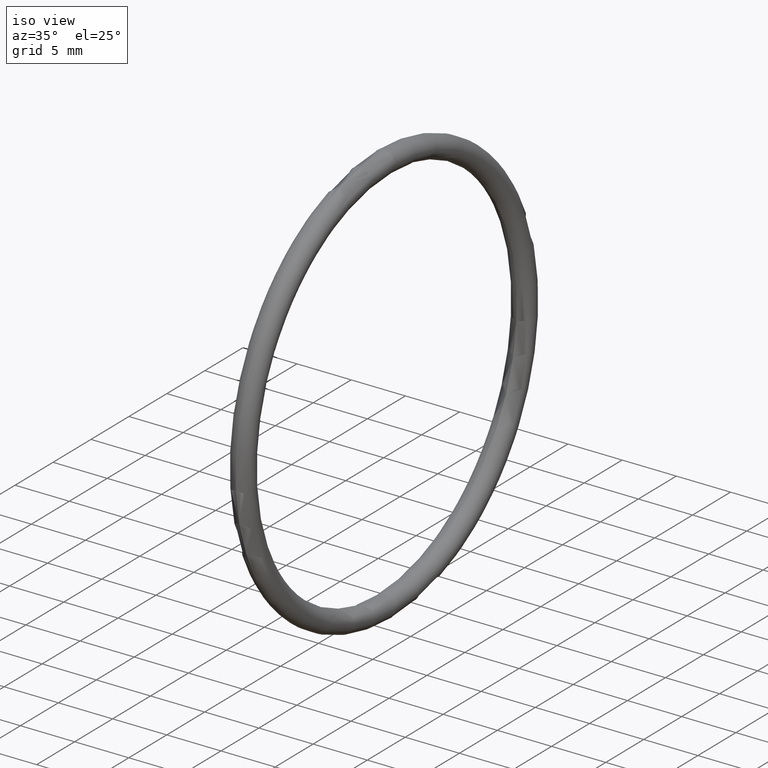
[diagram: clean part render]
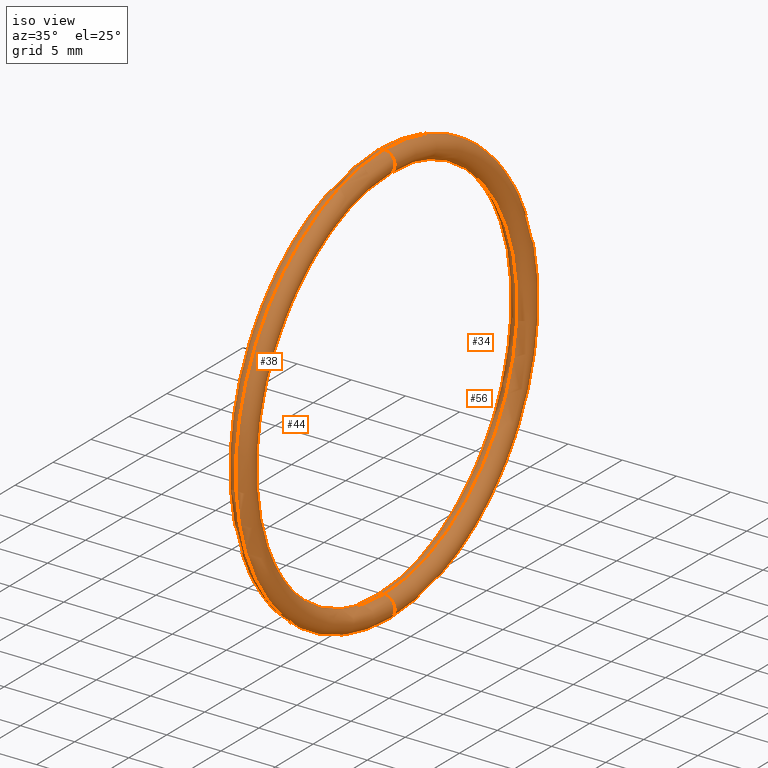
[diagram: same view with one multi-face feature highlighted, each face labeled with its STEP entity id]
A machine part, iso view. The highlighted faces form ONE feature: a constant-radius fillet chain: 4 tangent blend faces with common blend radius 1.016 mm. The faces share edges in the B-rep.
Their STEP definitions:
[1] entity #38 (Torus):
#13 = FACE_OUTER_BOUND ( 'NONE', #54, .T. ) ;
#38 = ADVANCED_FACE ( 'NONE', ( #13 ), #69, .T. ) ;
#47 = ORIENTED_EDGE ( 'NONE', *, *, #60, .T. ) ;
#48 = VERTEX_POINT ( 'NONE', #116 ) ;
#49 = EDGE_CURVE ( 'NONE', #52, #48, #92, .T. ) ;
#50 = EDGE_CURVE ( 'NONE', #52, #51, #114, .T. ) ;
#51 = VERTEX_POINT ( 'NONE', #111 ) ;
#52 = VERTEX_POINT ( 'NONE', #110 ) ;
#53 = ORIENTED_EDGE ( 'NONE', *, *, #50, .F. ) ;
#54 = EDGE_LOOP ( 'NONE', ( #53, #55, #47, #61 ) ) ;
#55 = ORIENTED_EDGE ( 'NONE', *, *, #49, .T. ) ;
#58 = VERTEX_POINT ( 'NONE', #99 ) ;
#59 = EDGE_CURVE ( 'NONE', #51, #58, #102, .T. ) ;
#60 = EDGE_CURVE ( 'NONE', #48, #58, #82, .T. ) ;
#61 = ORIENTED_EDGE ( 'NONE', *, *, #59, .F. ) ;
#68 = CARTESIAN_POINT ( 'NONE',  ( 0.1000000000000000900, 0.0000000000000000000, 0.0000000000000000000 ) ) ;
#69 = TOROIDAL_SURFACE ( 'NONE', #70, 0.7299999999999998700, 0.03999999999999997300 ) ;
#70 = AXIS2_PLACEMENT_3D ( 'NONE', #68, #106, #78 ) ;
#78 = DIRECTION ( 'NONE',  ( 0.0000000000000000000, 0.0000000000000000000, 1.000000000000000000 ) ) ;
#79 = DIRECTION ( 'NONE',  ( 0.0000000000000000000, -1.000000000000000000, 0.0000000000000000000 ) ) ;
#80 = CARTESIAN_POINT ( 'NONE',  ( 0.1000000000000000900, 0.0000000000000000000, 0.7299999999999998700 ) ) ;
#81 = AXIS2_PLACEMENT_3D ( 'NONE', #80, #79, #120 ) ;
#82 = CIRCLE ( 'NONE', #81, 0.03999999999999998000 ) ;
#83 = DIRECTION ( 'NONE',  ( 0.0000000000000000000, 0.0000000000000000000, 1.000000000000000000 ) ) ;
#84 = DIRECTION ( 'NONE',  ( -1.000000000000000000, -0.0000000000000000000, -0.0000000000000000000 ) ) ;
#85 = AXIS2_PLACEMENT_3D ( 'NONE', #101, #84, #83 ) ;
#86 = CARTESIAN_POINT ( 'NONE',  ( 0.1000000000000000900, 8.939921633775677100E-017, -0.7299999999999998700 ) ) ;
#88 = DIRECTION ( 'NONE',  ( 0.0000000000000000000, 0.0000000000000000000, 1.000000000000000000 ) ) ;
#89 = DIRECTION ( 'NONE',  ( -1.000000000000000000, -0.0000000000000000000, -0.0000000000000000000 ) ) ;
#90 = CARTESIAN_POINT ( 'NONE',  ( 0.1000000000000000900, 0.0000000000000000000, 0.0000000000000000000 ) ) ;
#91 = AXIS2_PLACEMENT_3D ( 'NONE', #90, #89, #88 ) ;
#92 = CIRCLE ( 'NONE', #91, 0.7699999999999998000 ) ;
#96 = DIRECTION ( 'NONE',  ( -0.0000000000000000000, 1.000000000000000000, 1.224646799147353200E-016 ) ) ;
#99 = CARTESIAN_POINT ( 'NONE',  ( 0.1000000000000000900, 0.0000000000000000000, 0.6899999999999998400 ) ) ;
#101 = CARTESIAN_POINT ( 'NONE',  ( 0.1000000000000000900, 0.0000000000000000000, 0.0000000000000000000 ) ) ;
#102 = CIRCLE ( 'NONE', #85, 0.6899999999999998400 ) ;
#106 = DIRECTION ( 'NONE',  ( -1.000000000000000000, -0.0000000000000000000, -0.0000000000000000000 ) ) ;
#110 = CARTESIAN_POINT ( 'NONE',  ( 0.1000000000000000900, 9.429780353434617300E-017, -0.7699999999999996800 ) ) ;
#111 = CARTESIAN_POINT ( 'NONE',  ( 0.1000000000000000900, 8.450062914116736900E-017, -0.6899999999999998400 ) ) ;
#112 = DIRECTION ( 'NONE',  ( 0.0000000000000000000, -1.224646799147351000E-016, 1.000000000000000000 ) ) ;
#113 = AXIS2_PLACEMENT_3D ( 'NONE', #86, #96, #112 ) ;
#114 = CIRCLE ( 'NONE', #113, 0.03999999999999998000 ) ;
#116 = CARTESIAN_POINT ( 'NONE',  ( 0.1000000000000000900, 0.0000000000000000000, 0.7699999999999996800 ) ) ;
#120 = DIRECTION ( 'NONE',  ( 0.0000000000000000000, 0.0000000000000000000, -1.000000000000000000 ) ) ;
[2] entity #44 (Torus):
#8 = DIRECTION ( 'NONE',  ( 0.0000000000000000000, 0.0000000000000000000, -1.000000000000000000 ) ) ;
#9 = DIRECTION ( 'NONE',  ( 0.0000000000000000000, -1.000000000000000000, 0.0000000000000000000 ) ) ;
#10 = CARTESIAN_POINT ( 'NONE',  ( 0.1000000000000000900, 0.0000000000000000000, 0.7299999999999998700 ) ) ;
#11 = AXIS2_PLACEMENT_3D ( 'NONE', #10, #9, #8 ) ;
#12 = CIRCLE ( 'NONE', #11, 0.03999999999999998000 ) ;
#29 = ORIENTED_EDGE ( 'NONE', *, *, #36, .T. ) ;
#31 = ORIENTED_EDGE ( 'NONE', *, *, #49, .F. ) ;
#36 = EDGE_CURVE ( 'NONE', #58, #48, #12, .T. ) ;
#40 = ORIENTED_EDGE ( 'NONE', *, *, #43, .F. ) ;
#41 = ORIENTED_EDGE ( 'NONE', *, *, #59, .T. ) ;
#43 = EDGE_CURVE ( 'NONE', #51, #52, #100, .T. ) ;
#44 = ADVANCED_FACE ( 'NONE', ( #76 ), #115, .T. ) ;
#45 = EDGE_LOOP ( 'NONE', ( #31, #40, #41, #29 ) ) ;
#48 = VERTEX_POINT ( 'NONE', #116 ) ;
#49 = EDGE_CURVE ( 'NONE', #52, #48, #92, .T. ) ;
#51 = VERTEX_POINT ( 'NONE', #111 ) ;
#52 = VERTEX_POINT ( 'NONE', #110 ) ;
#58 = VERTEX_POINT ( 'NONE', #99 ) ;
#59 = EDGE_CURVE ( 'NONE', #51, #58, #102, .T. ) ;
#75 = AXIS2_PLACEMENT_3D ( 'NONE', #93, #105, #95 ) ;
#76 = FACE_OUTER_BOUND ( 'NONE', #45, .T. ) ;
#77 = DIRECTION ( 'NONE',  ( -1.000000000000000000, -0.0000000000000000000, -0.0000000000000000000 ) ) ;
#83 = DIRECTION ( 'NONE',  ( 0.0000000000000000000, 0.0000000000000000000, 1.000000000000000000 ) ) ;
#84 = DIRECTION ( 'NONE',  ( -1.000000000000000000, -0.0000000000000000000, -0.0000000000000000000 ) ) ;
#85 = AXIS2_PLACEMENT_3D ( 'NONE', #101, #84, #83 ) ;
#87 = CARTESIAN_POINT ( 'NONE',  ( 0.1000000000000000900, 0.0000000000000000000, 0.0000000000000000000 ) ) ;
#88 = DIRECTION ( 'NONE',  ( 0.0000000000000000000, 0.0000000000000000000, 1.000000000000000000 ) ) ;
#89 = DIRECTION ( 'NONE',  ( -1.000000000000000000, -0.0000000000000000000, -0.0000000000000000000 ) ) ;
#90 = CARTESIAN_POINT ( 'NONE',  ( 0.1000000000000000900, 0.0000000000000000000, 0.0000000000000000000 ) ) ;
#91 = AXIS2_PLACEMENT_3D ( 'NONE', #90, #89, #88 ) ;
#92 = CIRCLE ( 'NONE', #91, 0.7699999999999998000 ) ;
#93 = CARTESIAN_POINT ( 'NONE',  ( 0.1000000000000000900, 8.939921633775677100E-017, -0.7299999999999998700 ) ) ;
#94 = DIRECTION ( 'NONE',  ( 0.0000000000000000000, 0.0000000000000000000, 1.000000000000000000 ) ) ;
#95 = DIRECTION ( 'NONE',  ( 0.0000000000000000000, -1.224646799147351000E-016, 1.000000000000000000 ) ) ;
#99 = CARTESIAN_POINT ( 'NONE',  ( 0.1000000000000000900, 0.0000000000000000000, 0.6899999999999998400 ) ) ;
#100 = CIRCLE ( 'NONE', #75, 0.03999999999999998000 ) ;
#101 = CARTESIAN_POINT ( 'NONE',  ( 0.1000000000000000900, 0.0000000000000000000, 0.0000000000000000000 ) ) ;
#102 = CIRCLE ( 'NONE', #85, 0.6899999999999998400 ) ;
#104 = AXIS2_PLACEMENT_3D ( 'NONE', #87, #77, #94 ) ;
#105 = DIRECTION ( 'NONE',  ( -0.0000000000000000000, 1.000000000000000000, 1.224646799147353200E-016 ) ) ;
#110 = CARTESIAN_POINT ( 'NONE',  ( 0.1000000000000000900, 9.429780353434617300E-017, -0.7699999999999996800 ) ) ;
#111 = CARTESIAN_POINT ( 'NONE',  ( 0.1000000000000000900, 8.450062914116736900E-017, -0.6899999999999998400 ) ) ;
#115 = TOROIDAL_SURFACE ( 'NONE', #104, 0.7299999999999998700, 0.03999999999999997300 ) ;
#116 = CARTESIAN_POINT ( 'NONE',  ( 0.1000000000000000900, 0.0000000000000000000, 0.7699999999999996800 ) ) ;
[3] entity #34 (Torus):
#8 = DIRECTION ( 'NONE',  ( 0.0000000000000000000, 0.0000000000000000000, -1.000000000000000000 ) ) ;
#9 = DIRECTION ( 'NONE',  ( 0.0000000000000000000, -1.000000000000000000, 0.0000000000000000000 ) ) ;
#10 = CARTESIAN_POINT ( 'NONE',  ( 0.1000000000000000900, 0.0000000000000000000, 0.7299999999999998700 ) ) ;
#11 = AXIS2_PLACEMENT_3D ( 'NONE', #10, #9, #8 ) ;
#12 = CIRCLE ( 'NONE', #11, 0.03999999999999998000 ) ;
#14 = DIRECTION ( 'NONE',  ( 0.0000000000000000000, 0.0000000000000000000, 1.000000000000000000 ) ) ;
#15 = DIRECTION ( 'NONE',  ( -1.000000000000000000, -0.0000000000000000000, -0.0000000000000000000 ) ) ;
#16 = AXIS2_PLACEMENT_3D ( 'NONE', #18, #15, #14 ) ;
#17 = TOROIDAL_SURFACE ( 'NONE', #16, 0.7299999999999998700, 0.03999999999999997300 ) ;
#18 = CARTESIAN_POINT ( 'NONE',  ( 0.1000000000000000900, 0.0000000000000000000, 0.0000000000000000000 ) ) ;
#19 = DIRECTION ( 'NONE',  ( 0.0000000000000000000, 0.0000000000000000000, 1.000000000000000000 ) ) ;
#20 = DIRECTION ( 'NONE',  ( -1.000000000000000000, -0.0000000000000000000, -0.0000000000000000000 ) ) ;
#21 = AXIS2_PLACEMENT_3D ( 'NONE', #67, #20, #19 ) ;
#22 = CIRCLE ( 'NONE', #21, 0.6899999999999998400 ) ;
#23 = FACE_OUTER_BOUND ( 'NONE', #25, .T. ) ;
#24 = EDGE_CURVE ( 'NONE', #48, #52, #66, .T. ) ;
#25 = EDGE_LOOP ( 'NONE', ( #30, #27, #32, #26 ) ) ;
#26 = ORIENTED_EDGE ( 'NONE', *, *, #43, .T. ) ;
#27 = ORIENTED_EDGE ( 'NONE', *, *, #36, .F. ) ;
#28 = EDGE_CURVE ( 'NONE', #58, #51, #22, .T. ) ;
#30 = ORIENTED_EDGE ( 'NONE', *, *, #24, .F. ) ;
#32 = ORIENTED_EDGE ( 'NONE', *, *, #28, .T. ) ;
#34 = ADVANCED_FACE ( 'NONE', ( #23 ), #17, .T. ) ;
#36 = EDGE_CURVE ( 'NONE', #58, #48, #12, .T. ) ;
#43 = EDGE_CURVE ( 'NONE', #51, #52, #100, .T. ) ;
#48 = VERTEX_POINT ( 'NONE', #116 ) ;
#51 = VERTEX_POINT ( 'NONE', #111 ) ;
#52 = VERTEX_POINT ( 'NONE', #110 ) ;
#58 = VERTEX_POINT ( 'NONE', #99 ) ;
#62 = DIRECTION ( 'NONE',  ( 0.0000000000000000000, 0.0000000000000000000, 1.000000000000000000 ) ) ;
#63 = DIRECTION ( 'NONE',  ( -1.000000000000000000, -0.0000000000000000000, -0.0000000000000000000 ) ) ;
#64 = CARTESIAN_POINT ( 'NONE',  ( 0.1000000000000000900, 0.0000000000000000000, 0.0000000000000000000 ) ) ;
#65 = AXIS2_PLACEMENT_3D ( 'NONE', #64, #63, #62 ) ;
#66 = CIRCLE ( 'NONE', #65, 0.7699999999999998000 ) ;
#67 = CARTESIAN_POINT ( 'NONE',  ( 0.1000000000000000900, 0.0000000000000000000, 0.0000000000000000000 ) ) ;
#75 = AXIS2_PLACEMENT_3D ( 'NONE', #93, #105, #95 ) ;
#93 = CARTESIAN_POINT ( 'NONE',  ( 0.1000000000000000900, 8.939921633775677100E-017, -0.7299999999999998700 ) ) ;
#95 = DIRECTION ( 'NONE',  ( 0.0000000000000000000, -1.224646799147351000E-016, 1.000000000000000000 ) ) ;
#99 = CARTESIAN_POINT ( 'NONE',  ( 0.1000000000000000900, 0.0000000000000000000, 0.6899999999999998400 ) ) ;
#100 = CIRCLE ( 'NONE', #75, 0.03999999999999998000 ) ;
#105 = DIRECTION ( 'NONE',  ( -0.0000000000000000000, 1.000000000000000000, 1.224646799147353200E-016 ) ) ;
#110 = CARTESIAN_POINT ( 'NONE',  ( 0.1000000000000000900, 9.429780353434617300E-017, -0.7699999999999996800 ) ) ;
#111 = CARTESIAN_POINT ( 'NONE',  ( 0.1000000000000000900, 8.450062914116736900E-017, -0.6899999999999998400 ) ) ;
#116 = CARTESIAN_POINT ( 'NONE',  ( 0.1000000000000000900, 0.0000000000000000000, 0.7699999999999996800 ) ) ;
[4] entity #56 (Torus):
#19 = DIRECTION ( 'NONE',  ( 0.0000000000000000000, 0.0000000000000000000, 1.000000000000000000 ) ) ;
#20 = DIRECTION ( 'NONE',  ( -1.000000000000000000, -0.0000000000000000000, -0.0000000000000000000 ) ) ;
#21 = AXIS2_PLACEMENT_3D ( 'NONE', #67, #20, #19 ) ;
#22 = CIRCLE ( 'NONE', #21, 0.6899999999999998400 ) ;
#24 = EDGE_CURVE ( 'NONE', #48, #52, #66, .T. ) ;
#28 = EDGE_CURVE ( 'NONE', #58, #51, #22, .T. ) ;
#33 = ORIENTED_EDGE ( 'NONE', *, *, #24, .T. ) ;
#35 = ORIENTED_EDGE ( 'NONE', *, *, #50, .T. ) ;
#39 = ORIENTED_EDGE ( 'NONE', *, *, #28, .F. ) ;
#46 = ORIENTED_EDGE ( 'NONE', *, *, #60, .F. ) ;
#48 = VERTEX_POINT ( 'NONE', #116 ) ;
#50 = EDGE_CURVE ( 'NONE', #52, #51, #114, .T. ) ;
#51 = VERTEX_POINT ( 'NONE', #111 ) ;
#52 = VERTEX_POINT ( 'NONE', #110 ) ;
#56 = ADVANCED_FACE ( 'NONE', ( #109 ), #107, .T. ) ;
#57 = EDGE_LOOP ( 'NONE', ( #46, #33, #35, #39 ) ) ;
#58 = VERTEX_POINT ( 'NONE', #99 ) ;
#60 = EDGE_CURVE ( 'NONE', #48, #58, #82, .T. ) ;
#62 = DIRECTION ( 'NONE',  ( 0.0000000000000000000, 0.0000000000000000000, 1.000000000000000000 ) ) ;
#63 = DIRECTION ( 'NONE',  ( -1.000000000000000000, -0.0000000000000000000, -0.0000000000000000000 ) ) ;
#64 = CARTESIAN_POINT ( 'NONE',  ( 0.1000000000000000900, 0.0000000000000000000, 0.0000000000000000000 ) ) ;
#65 = AXIS2_PLACEMENT_3D ( 'NONE', #64, #63, #62 ) ;
#66 = CIRCLE ( 'NONE', #65, 0.7699999999999998000 ) ;
#67 = CARTESIAN_POINT ( 'NONE',  ( 0.1000000000000000900, 0.0000000000000000000, 0.0000000000000000000 ) ) ;
#79 = DIRECTION ( 'NONE',  ( 0.0000000000000000000, -1.000000000000000000, 0.0000000000000000000 ) ) ;
#80 = CARTESIAN_POINT ( 'NONE',  ( 0.1000000000000000900, 0.0000000000000000000, 0.7299999999999998700 ) ) ;
#81 = AXIS2_PLACEMENT_3D ( 'NONE', #80, #79, #120 ) ;
#82 = CIRCLE ( 'NONE', #81, 0.03999999999999998000 ) ;
#86 = CARTESIAN_POINT ( 'NONE',  ( 0.1000000000000000900, 8.939921633775677100E-017, -0.7299999999999998700 ) ) ;
#96 = DIRECTION ( 'NONE',  ( -0.0000000000000000000, 1.000000000000000000, 1.224646799147353200E-016 ) ) ;
#97 = DIRECTION ( 'NONE',  ( -1.000000000000000000, -0.0000000000000000000, -0.0000000000000000000 ) ) ;
#98 = CARTESIAN_POINT ( 'NONE',  ( 0.1000000000000000900, 0.0000000000000000000, 0.0000000000000000000 ) ) ;
#99 = CARTESIAN_POINT ( 'NONE',  ( 0.1000000000000000900, 0.0000000000000000000, 0.6899999999999998400 ) ) ;
#103 = DIRECTION ( 'NONE',  ( 0.0000000000000000000, 0.0000000000000000000, 1.000000000000000000 ) ) ;
#107 = TOROIDAL_SURFACE ( 'NONE', #108, 0.7299999999999998700, 0.03999999999999997300 ) ;
#108 = AXIS2_PLACEMENT_3D ( 'NONE', #98, #97, #103 ) ;
#109 = FACE_OUTER_BOUND ( 'NONE', #57, .T. ) ;
#110 = CARTESIAN_POINT ( 'NONE',  ( 0.1000000000000000900, 9.429780353434617300E-017, -0.7699999999999996800 ) ) ;
#111 = CARTESIAN_POINT ( 'NONE',  ( 0.1000000000000000900, 8.450062914116736900E-017, -0.6899999999999998400 ) ) ;
#112 = DIRECTION ( 'NONE',  ( 0.0000000000000000000, -1.224646799147351000E-016, 1.000000000000000000 ) ) ;
#113 = AXIS2_PLACEMENT_3D ( 'NONE', #86, #96, #112 ) ;
#114 = CIRCLE ( 'NONE', #113, 0.03999999999999998000 ) ;
#116 = CARTESIAN_POINT ( 'NONE',  ( 0.1000000000000000900, 0.0000000000000000000, 0.7699999999999996800 ) ) ;
#120 = DIRECTION ( 'NONE',  ( 0.0000000000000000000, 0.0000000000000000000, -1.000000000000000000 ) ) ;